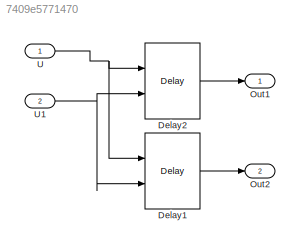
MODEL slx_7409e5771470
KIND model
CONFIG AbsTol = auto
CONFIG EnableMultiTasking = on
CONFIG FixedStep = 0.200000
CONFIG MaxStep = auto
CONFIG MinStep = auto
CONFIG RelTol = 1e-3
CONFIG SampleTimeConstraint = Unconstrained
CONFIG Solver = FixedStepDiscrete
CONFIG SolverName = FixedStepDiscrete
CONFIG StartTime = 0.0
CONFIG StopTime = 10.0
BLOCK [Delay] Delay1
  DelayLength = 1
  ExternalReset = Level hold
  InitialCondition = 1
  InputPortMap = u0,r5
  Ports = [2, 1]
BLOCK [Delay] Delay2
  DelayLength = 1
  ExternalReset = Level
  InitialCondition = 1
  InputPortMap = u0,r5
  Ports = [2, 1]
BLOCK [Outport] Out1
  IconDisplay = Port number
BLOCK [Outport] Out2
  IconDisplay = Port number
  Port = 2
BLOCK [Inport] U
  IconDisplay = Port number
  PortDimensions = 2
BLOCK [Inport] U1
  IconDisplay = Port number
  OutDataTypeStr = boolean
  Port = 2
  PortDimensions = 1
LINE Delay1:1 -> Out2:1
LINE Delay2:1 -> Out1:1
NET U1:1 -> Delay1:2, Delay2:2
NET U:1 -> Delay1:1, Delay2:1
note: NET lines group one-source signal fan-out (src -> all destinations, sorted); 1:1 wires keep LINE
